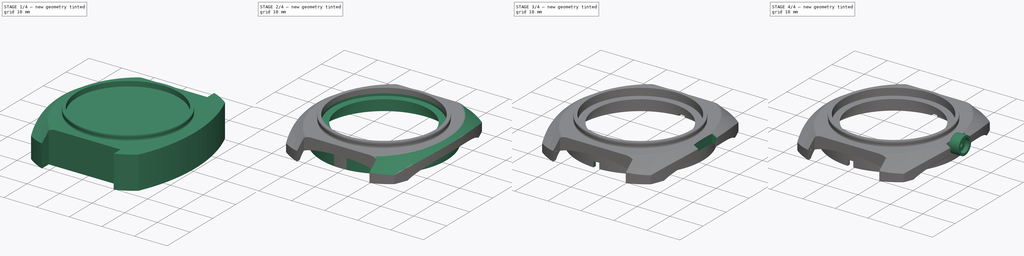
[diagram: build sequence overview — one tinted view per stage of 4, left to right]
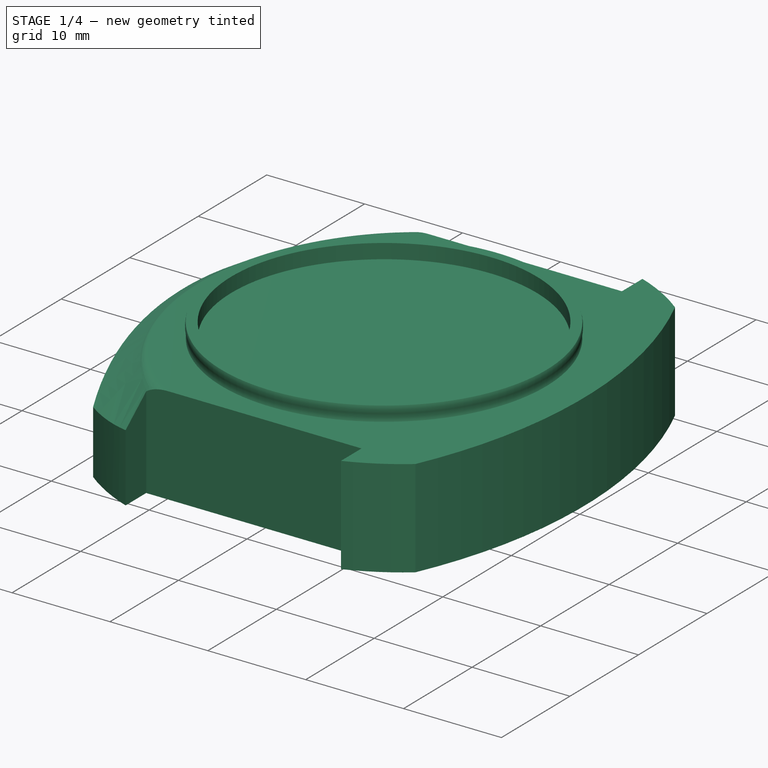
[diagram: stage 1 of 4 — iso view after this stage's code; geometry added in this stage tinted green]
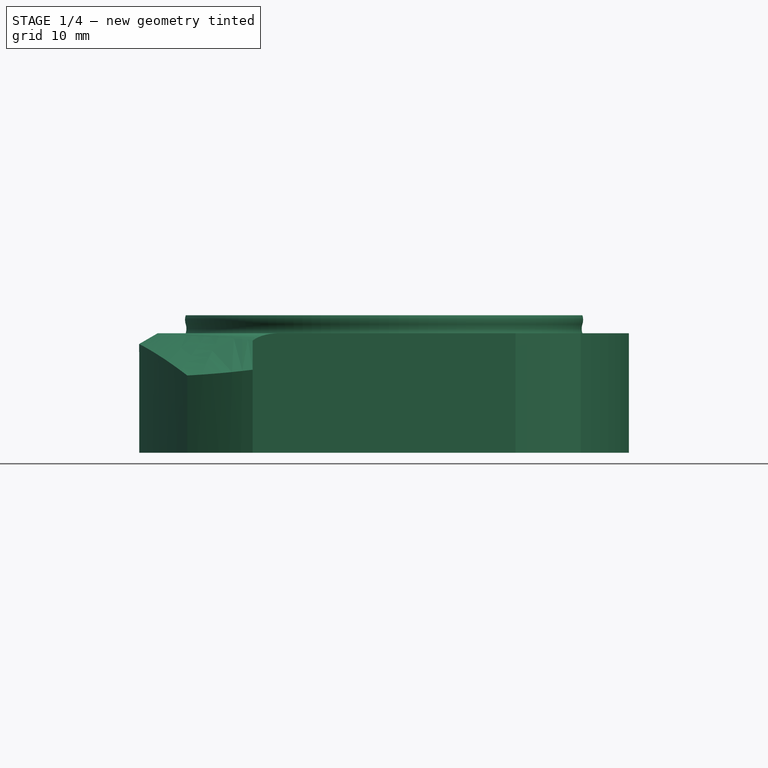
[diagram: stage 1 of 4 — front view after this stage's code; geometry added in this stage tinted green]
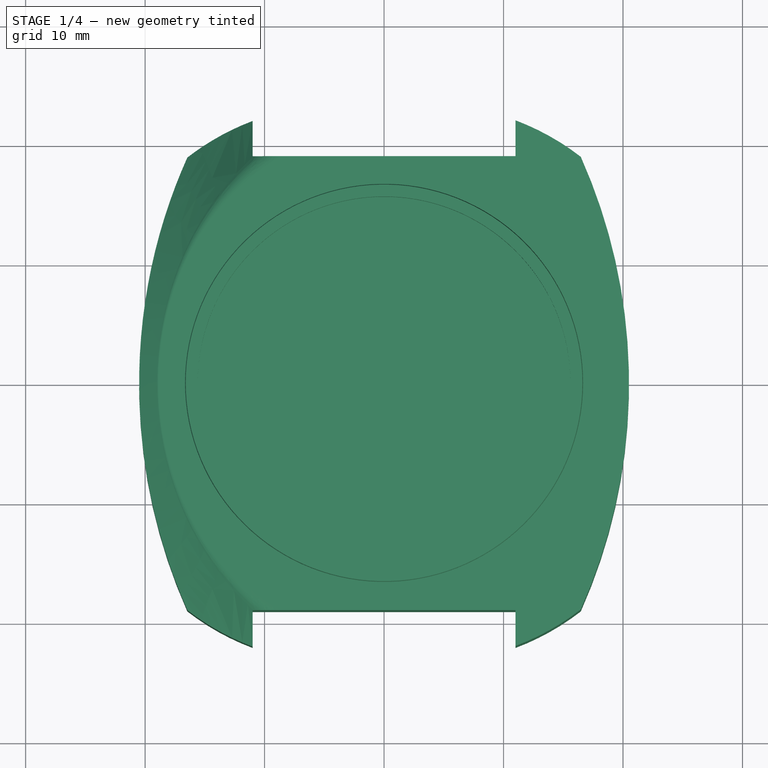
[diagram: stage 1 of 4 — top view after this stage's code; geometry added in this stage tinted green]
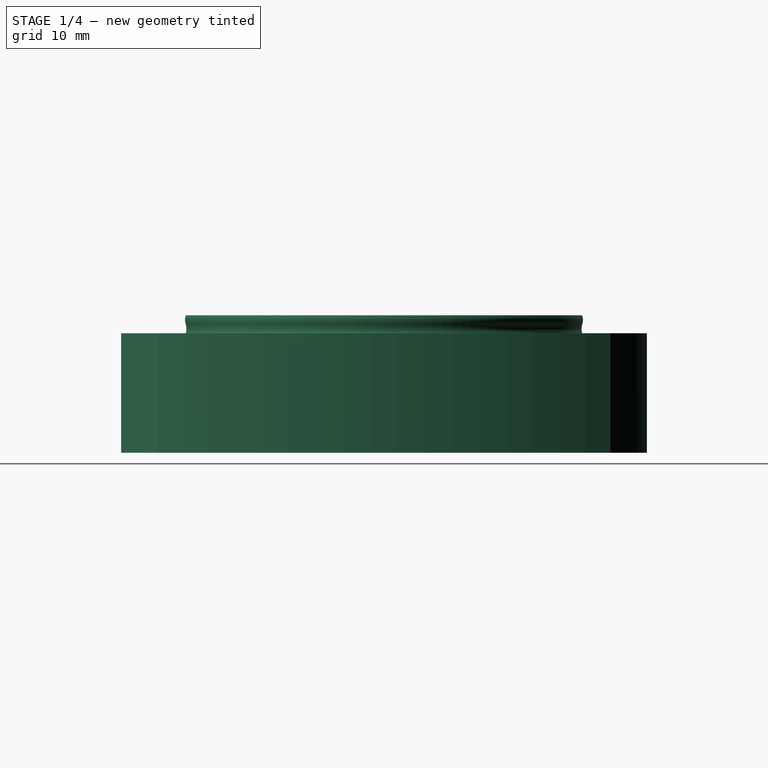
[diagram: stage 1 of 4 — right view after this stage's code; geometry added in this stage tinted green]
FCSTD DOCUMENT  (FreeCAD 0.19R20415 (Git))
Label: Vostok_Amphibia_Case_710
License: All rights reserved
LicenseURL: http://en.wikipedia.org/wiki/All_rights_reserved
objects: Sketcher::SketchObject×13, PartDesign::Pocket×4, PartDesign::Plane×3, PartDesign::Pad×2, PartDesign::Groove×2, Image::ImagePlane×1, PartDesign::Point×1, PartDesign::Revolution×1, PartDesign::SubtractivePipe×1, PartDesign::Mirrored×1, PartDesign::Body×1, Part::Fillet×1
note: 40 computed .brp shape members not serialized (recipe doc carries the construction recipe); baked Part::Feature solids carry a one-line shape summary decoded from their .brp

FEATURE [Image::ImagePlane] ImagePlane
  XSize = 57.9372
  YSize = 57.9372
FEATURE [PartDesign::Point] DatumPoint
  AttacherType = Attacher::AttachEnginePoint
FEATURE [Sketcher::SketchObject] Sketch
  MapMode = 5
  Support = -> [XY_Plane]
  sketch-geometry (15):
    g0: LineSegment StartX=-11 StartY=19 StartZ=0 EndX=11 EndY=19 EndZ=0
    g1: LineSegment StartX=11 StartY=19 StartZ=0 EndX=11 EndY=22 EndZ=0
    g2: ArcOfCircle CenterX=26 CenterY=0 CenterZ=0 NormalX=0 NormalY=0 NormalZ=1 AngleXU=0 Radius=46.5 StartAngle=2.72202 EndAngle=3.56117
    g3: ArcOfCircle CenterX=-26 CenterY=0 CenterZ=0 NormalX=0 NormalY=0 NormalZ=1 AngleXU=0 Radius=46.5 StartAngle=5.86361 EndAngle=6.70276
    g4: LineSegment StartX=-11 StartY=22 StartZ=0 EndX=-11 EndY=19 EndZ=0
    g5: ArcOfCircle CenterX=-3.59786 CenterY=2.34782 CenterZ=0 NormalX=0 NormalY=0 NormalZ=1 AngleXU=0 Radius=21 StartAngle=1.93102 EndAngle=2.2304
    g6: ArcOfCircle CenterX=3.59786 CenterY=2.34782 CenterZ=0 NormalX=0 NormalY=0 NormalZ=1 AngleXU=0 Radius=21 StartAngle=0.911194 EndAngle=1.21057
    g7: ArcOfCircle CenterX=-3.59786 CenterY=-2.34782 CenterZ=0 NormalX=0 NormalY=0 NormalZ=1 AngleXU=0 Radius=21 StartAngle=4.05279 EndAngle=4.35217
    g8: ArcOfCircle CenterX=3.59786 CenterY=-2.34782 CenterZ=0 NormalX=0 NormalY=0 NormalZ=1 AngleXU=0 Radius=21 StartAngle=5.07261 EndAngle=5.37199
    g9: LineSegment StartX=-11 StartY=-19 StartZ=0 EndX=11 EndY=-19 EndZ=0
    g10: LineSegment StartX=11 StartY=-19 StartZ=0 EndX=11 EndY=-22 EndZ=0
    g11: LineSegment StartX=-11 StartY=-19 StartZ=0 EndX=-11 EndY=-22 EndZ=0
    g12: GeomPoint X=-20.5 Y=0 Z=0
    g13: GeomPoint X=20.5 Y=0 Z=0
    g14: LineSegment [constr] StartX=16.4667 StartY=18.9428 StartZ=0 EndX=0 EndY=0 EndZ=0
  constraints (38):
    c: Coincident(g0,g1)
    c: Vertical(g1)
    c: PointOnObject(g2,g-1)
    c: Equal(g3,g2)
    c: Symmetric(g2,g3,g-2)
    c: Symmetric(g0,g0,g-2)
    c: Coincident(g4,g0)
    c: Symmetric(g4,g1,g-2)
    c: Coincident(g5,g2)
    c: Coincident(g5,g4)
    c: Coincident(g6,g1)
    c: Coincident(g6,g3)
    c: Symmetric(g6,g5,g-2)
    c: DistanceX(g0,g0) = 22
    c: Coincident(g7,g2)
    c: Coincident(g8,g3)
    c: Coincident(g9,g10)
    c: Coincident(g10,g8)
    c: Coincident(g9,g11)
    c: Coincident(g11,g7)
    c: Symmetric(g9,g0,g-1)
    c: Symmetric(g9,g0,g-1)
    c: Symmetric(g8,g1,g-1)
    c: Symmetric(g7,g4,g-1)
    c: Symmetric(g7,g8,g-2)
    c: Symmetric(g7,g5,g-1)
    c: PointOnObject(g12,g2)
    c: PointOnObject(g13,g3)
    c: Horizontal(g12,g13)
    c: PointOnObject(g12,g-1)
    c: DistanceX(g12,g13) = 41
    c: DistanceY(g8,g1) = 44
    c: Radius(g8) = 21
    c: Radius(g3) = 46.5
    c: DistanceY(g11,g11) = 3
    c: Coincident(g14,g3)
    c: Coincident(g14,g-1)
    c: Angle(g14,g-2) = 0.715585
FEATURE [PartDesign::Pad] Pad
  AllowMultiFace = false
  Length = 10
  Length2 = 100
  Profile = -> Sketch
  Type = 0
FEATURE [Sketcher::SketchObject] Sketch001
  MapMode = 5
  Placement = pos=(0,0,0) rot=(1,0,0;1.5708rad)
  Support = -> [XZ_Plane]
  sketch-geometry (5):
    g0: LineSegment StartX=15.6 StartY=10 StartZ=0 EndX=15.6 EndY=11.5 EndZ=0
    g1: LineSegment StartX=15.6 StartY=11.5 StartZ=0 EndX=16.6 EndY=11.5 EndZ=0
    g2: ArcOfCircle CenterX=17.7924 CenterY=10.375 CenterZ=0 NormalX=0 NormalY=0 NormalZ=1 AngleXU=0 Radius=1.25 StartAngle=2.8369 EndAngle=3.44629
    g3: LineSegment StartX=15.6 StartY=10 StartZ=0 EndX=16.6 EndY=10 EndZ=0
    g4: ArcOfCircle CenterX=15.4076 CenterY=11.125 CenterZ=0 NormalX=0 NormalY=0 NormalZ=1 AngleXU=0 Radius=1.25 StartAngle=5.97849 EndAngle=6.58788
  constraints (15):
    c: Vertical(g0)
    c: Coincident(g0,g1)
    c: Horizontal(g1)
    c: Coincident(g0,g3)
    c: Horizontal(g3)
    c: Coincident(g2,g3)
    c: Coincident(g4,g1)
    c: DistanceX(g1,g1) = 1
    c: Tangent(g4,g2) = 1.5708
    c: Vertical(g1,g2)
    c: DistanceY(g0,g0) = 1.5
    c: Symmetric(g1,g2,g2)
    c: Radius(g4) = 1.25
    c: DistanceY(g2) = 10
    c: DistanceX(g0) = 15.6
FEATURE [PartDesign::Revolution] Revolution
  AllowMultiFace = false
  Angle = 360
  Axis = (0,-2e-16,1)
  Base = (0,0,0)
  BaseFeature = -> Pad
  Profile = -> Sketch001
  ReferenceAxis = -> Sketch001 [V_Axis]
  Reversed = true
FEATURE [Sketcher::SketchObject] Sketch009
  ExternalGeometry = -> [Revolution]
  MapMode = 5
  Placement = pos=(0,0,10) rot=(0,0,1;0rad)
  sketch-geometry (7):
    g0: ArcOfEllipse CenterX=0 CenterY=0 CenterZ=0 NormalX=0 NormalY=0 NormalZ=1 MajorRadius=22.75 MinorRadius=20 AngleXU=1.5708 StartAngle=0 EndAngle=3.14159
    g1: LineSegment [constr] StartX=0 StartY=22.75 StartZ=0 EndX=0 EndY=-22.75 EndZ=0
    g2: LineSegment [constr] StartX=-20 StartY=2.2177e-12 StartZ=0 EndX=20 EndY=-2.2177e-12 EndZ=0
    g3: GeomPoint X=-4.0904e-12 Y=10.8426 Z=0
    g4: GeomPoint X=4.0907e-12 Y=-10.8426 Z=0
    g5: LineSegment StartX=-11 StartY=19 StartZ=0 EndX=0 EndY=19 EndZ=0
    g6: LineSegment StartX=0 StartY=-19 StartZ=0 EndX=-11 EndY=-19 EndZ=0
  constraints (14):
    c: InternalAlignment(g1-g4 -> g0) x4
    c: PointOnObject(g0,g-1)
    c: Perpendicular(g-1,g1)
    c: DistanceX(g2) = -20
    c: PointOnObject(g1,g-2)
    c: PointOnObject(g0,g-2)
    c: PointOnObject(g0,g-2)
    c: PointOnObject(g-3,g0)
    c: Coincident(g5,g-3)
    c: PointOnObject(g5,g-3)
    c: PointOnObject(g5,g-2)
    c: PointOnObject(g6,g1)
    c: Horizontal(g6)
    c: Symmetric(g6,g5,g-1)
FEATURE [PartDesign::Plane] DatumPlane
  Length = 60
  MapMode = 5
  Placement = pos=(-11,9.1316e-12,0) rot=(0.57735,0.57735,0.57735;2.0944rad)
  ResizeMode = 0
  Support = -> [Revolution]
  Width = 60
FEATURE [PartDesign::Plane] DatumPlane001
  Length = 60
  MapMode = 5
  Placement = pos=(0,0,0) rot=(1,0,0;1.5708rad)
  ResizeMode = 0
  Support = -> [XZ_Plane]
  Width = 60
FEATURE [Sketcher::SketchObject] Sketch013
  MapMode = 5
  Placement = pos=(0,0,0) rot=(1,0,0;1.5708rad)
  Support = -> [XZ_Plane]
  sketch-geometry (4):
    g0: LineSegment StartX=-29.7309 StartY=0 StartZ=0 EndX=29.7309 EndY=0 EndZ=0
    g1: LineSegment StartX=29.7309 StartY=0 StartZ=0 EndX=29.7309 EndY=4 EndZ=0
    g2: LineSegment StartX=29.7309 StartY=4 StartZ=0 EndX=-29.7309 EndY=4 EndZ=0
    g3: LineSegment StartX=-29.7309 StartY=4 StartZ=0 EndX=-29.7309 EndY=0 EndZ=0
  constraints (10):
    c: Coincident(g0,g1)
    c: Coincident(g1,g2)
    c: Coincident(g2,g3)
    c: Coincident(g3,g0)
    c: Horizontal(g0)
    c: Vertical(g1)
    c: Vertical(g3)
    c: PointOnObject(g0,g-1)
    c: DistanceY(g1,g1) = 4
    c: Symmetric(g1,g2,g-2)
FEATURE [Sketcher::SketchObject] Sketch014
  MapMode = 5
  Placement = pos=(0,0,0) rot=(0.57735,0.57735,0.57735;2.0944rad)
  Support = -> [YZ_Plane]
  sketch-geometry (16):
    g0: LineSegment StartX=0 StartY=4 StartZ=0 EndX=18 EndY=4 EndZ=0
    g1: LineSegment StartX=19 StartY=4 StartZ=0 EndX=19 EndY=7.3 EndZ=0
    g2: LineSegment StartX=19 StartY=4 StartZ=0 EndX=19 EndY=2 EndZ=0
    g3: LineSegment StartX=19 StartY=2 StartZ=0 EndX=24.368 EndY=2 EndZ=0
    g4: LineSegment StartX=0 StartY=4 StartZ=0 EndX=0 EndY=19.1 EndZ=0
    g5: LineSegment StartX=18 StartY=6 StartZ=0 EndX=15.5 EndY=6 EndZ=0
    g6: LineSegment StartX=15.5 StartY=6 StartZ=0 EndX=15.5 EndY=7.5 EndZ=0
    g7: LineSegment StartX=15.5 StartY=7.5 StartZ=0 EndX=14.25 EndY=7.5 EndZ=0
    g8: LineSegment StartX=14.25 StartY=7.5 StartZ=0 EndX=14.25 EndY=9.1 EndZ=0
    g9: LineSegment StartX=14.25 StartY=9.1 StartZ=0 EndX=13.6 EndY=9.1 EndZ=0
    g10: LineSegment StartX=15.6 StartY=19.1 StartZ=0 EndX=0 EndY=19.1 EndZ=0
    g11: LineSegment StartX=13.6 StartY=9.1 StartZ=0 EndX=13.6 EndY=9.3 EndZ=0
    g12: LineSegment StartX=13.6 StartY=9.3 StartZ=0 EndX=15.6 EndY=9.3 EndZ=0
    g13: LineSegment StartX=15.6 StartY=9.3 StartZ=0 EndX=15.6 EndY=19.1 EndZ=0
    g14: LineSegment StartX=18 StartY=6 StartZ=0 EndX=18 EndY=4 EndZ=0
    g15: ArcOfCircle CenterX=17.4381 CenterY=0.349676 CenterZ=0 NormalX=0 NormalY=0 NormalZ=1 AngleXU=0 Radius=7.12365 StartAngle=0.233792 EndAngle=1.34975
  constraints (47):
    c: Horizontal(g0)
    c: PointOnObject(g0,g-2)
    c: DistanceY(g0) = 4
    c: DistanceX(g0) = 18
    c: Vertical(g1)
    c: Horizontal(g1,g0)
    c: Coincident(g1,g2)
    c: Vertical(g2)
    c: Coincident(g2,g3)
    c: Horizontal(g3)
    c: DistanceY(g2,g1) = 2
    c: Vertical(g4)
    c: Coincident(g4,g0)
    c: Horizontal(g5)
    c: Coincident(g5,g6)
    c: Vertical(g6)
    c: Coincident(g6,g7)
    c: Horizontal(g7)
    c: Coincident(g7,g8)
    c: Vertical(g8)
    c: DistanceY(g0,g5) = 2
    c: DistanceY(g6,g6) = 1.5
    c: Coincident(g8,g9)
    c: Horizontal(g9)
    c: Horizontal(g10)
    c: DistanceY(g9,g10) = 10
    c: Coincident(g4,g10)
    c: DistanceX(g7) = 14.25
    c: Coincident(g9,g11)
    c: Vertical(g11)
    c: Coincident(g11,g12)
    c: Horizontal(g12)
    c: Coincident(g12,g13)
    c: Coincident(g10,g13)
    c: DistanceY(g9,g11) = 0.2
    c: DistanceX(g5,g5) = 2.5
    c: DistanceY(g0,g12) = 5.3
    c: DistanceX(g10) = 15.6
    c: Vertical(g13)
    c: DistanceX(g12,g12) = 2
    c: Coincident(g14,g5)
    c: Coincident(g14,g0)
    c: Vertical(g14)
    c: DistanceY(g1,g12) = 2
    c: DistanceX(g2) = 19
    c: Coincident(g1,g15)
    c: Coincident(g15,g3)
FEATURE [Sketcher::SketchObject] Sketch020
  MapMode = 5
  Placement = pos=(0,0,0) rot=(1,0,0;1.5708rad)
  Support = -> [XZ_Plane]
  sketch-geometry (4):
    g0: LineSegment StartX=-0.875 StartY=5.75 StartZ=0 EndX=0.875 EndY=5.75 EndZ=0
    g1: LineSegment StartX=0.875 StartY=5.75 StartZ=0 EndX=0.875 EndY=4 EndZ=0
    g2: LineSegment StartX=0.875 StartY=4 StartZ=0 EndX=-0.875 EndY=4 EndZ=0
    g3: LineSegment StartX=-0.875 StartY=4 StartZ=0 EndX=-0.875 EndY=5.75 EndZ=0
  constraints (11):
    c: Coincident(g0,g1)
    c: Coincident(g1,g2)
    c: Coincident(g2,g3)
    c: Coincident(g3,g0)
    c: Horizontal(g2)
    c: Vertical(g1)
    c: Vertical(g3)
    c: Equal(g0,g3)
    c: Symmetric(g0,g0,g-2)
    c: DistanceY(g3,g3) = 1.75
    c: DistanceY(g1) = 4
FEATURE [PartDesign::Plane] DatumPlane002
  AttachmentOffset = pos=(0,0,19) rot=(0,0,1;0rad)
  Length = 60
  MapMode = 2
  Placement = pos=(19,-4.2e-15,4.2e-15) rot=(0.57735,0.57735,0.57735;2.0944rad)
  ResizeMode = 0
  Support = -> [YZ_Plane]
  Width = 60
FEATURE [Sketcher::SketchObject] Sketch021  label="  "
  MapMode = 2
  Placement = pos=(19,-4.2e-15,4.2e-15) rot=(0.57735,0.57735,0.57735;2.0944rad)
  Support = -> [DatumPlane002]
  sketch-geometry (4):
    g0: LineSegment StartX=-4 StartY=20 StartZ=0 EndX=4 EndY=20 EndZ=0
    g1: LineSegment StartX=4 StartY=20 StartZ=0 EndX=4 EndY=0 EndZ=0
    g2: LineSegment StartX=4 StartY=0 StartZ=0 EndX=-4 EndY=0 EndZ=0
    g3: LineSegment StartX=-4 StartY=0 StartZ=0 EndX=-4 EndY=20 EndZ=0
  constraints (11):
    c: Coincident(g0,g1)
    c: Coincident(g1,g2)
    c: Coincident(g2,g3)
    c: Coincident(g3,g0)
    c: Horizontal(g2)
    c: Vertical(g1)
    c: Vertical(g3)
    c: Symmetric(g0,g0,g-2)
    c: DistanceX(g0,g0) = 8
    c: DistanceY(g1,g1) = 20
    c: PointOnObject(g-1,g2)
FEATURE [Sketcher::SketchObject] Sketch028
  MapMode = 5
  Placement = pos=(19,-4.2e-15,4.2e-15) rot=(0.57735,0.57735,0.57735;2.0944rad)
  Support = -> [DatumPlane002]
  sketch-geometry (1):
    g0: Circle CenterX=0 CenterY=8.5 CenterZ=0 NormalX=0 NormalY=0 NormalZ=1 AngleXU=0 Radius=2.75
  constraints (3):
    c: PointOnObject(g0,g-2)
    c: DistanceY(g0) = 8.5
    c: Radius(g0) = 2.75
FEATURE [Sketcher::SketchObject] Sketch029
  MapMode = 5
  Placement = pos=(0,0,0) rot=(1,0,0;1.5708rad)
  Support = -> [XZ_Plane]
  sketch-geometry (6):
    g0: LineSegment StartX=0 StartY=9.25 StartZ=0 EndX=0 EndY=8.5 EndZ=0
    g1: LineSegment StartX=0 StartY=8.5 StartZ=0 EndX=25 EndY=8.5 EndZ=0
    g2: LineSegment StartX=25 StartY=8.5 StartZ=0 EndX=25 EndY=10.5 EndZ=0
    g3: LineSegment StartX=25 StartY=10.5 StartZ=0 EndX=20.75 EndY=10.5 EndZ=0
    g4: LineSegment StartX=20.75 StartY=10.5 StartZ=0 EndX=20.75 EndY=9.25 EndZ=0
    g5: LineSegment StartX=20.75 StartY=9.25 StartZ=0 EndX=0 EndY=9.25 EndZ=0
  constraints (18):
    c: Coincident(g0,g1)
    c: Horizontal(g1)
    c: Coincident(g1,g2)
    c: Vertical(g2)
    c: Coincident(g2,g3)
    c: Horizontal(g3)
    c: Coincident(g3,g4)
    c: Vertical(g4)
    c: Coincident(g4,g5)
    c: Coincident(g5,g0)
    c: PointOnObject(g0,g-2)
    c: Vertical(g0)
    c: Horizontal(g5)
    c: DistanceY(g1) = 8.5
    c: DistanceY(g1,g4) = 0.75
    c: DistanceY(g2,g2) = 2
    c: DistanceX(g2) = 25
    c: DistanceX(g3) = 20.75
FEATURE [Sketcher::SketchObject] Sketch027
  MapMode = 5
  Placement = pos=(0,0,0) rot=(0.57735,0.57735,0.57735;2.0944rad)
  Support = -> [YZ_Plane]
  sketch-geometry (2):
    g0: Circle CenterX=20.75 CenterY=6.5 CenterZ=0 NormalX=0 NormalY=0 NormalZ=1 AngleXU=0 Radius=0.25
    g1: Circle CenterX=-20.75 CenterY=6.5 CenterZ=0 NormalX=0 NormalY=0 NormalZ=1 AngleXU=0 Radius=0.25
  constraints (5):
    c: Symmetric(g1,g0,g-2)
    c: Equal(g1,g0)
    c: Radius(g0) = 0.25
    c: DistanceX(g0) = 20.75
    c: DistanceY(g0) = 6.5
FEATURE [Sketcher::SketchObject] Sketch030
  MapMode = 5
  Placement = pos=(-11,9.1316e-12,0) rot=(0.57735,0.57735,0.57735;2.0944rad)
  Support = -> [DatumPlane]
  sketch-geometry (6):
    g0: LineSegment StartX=-17.393 StartY=10 StartZ=0 EndX=-24 EndY=10 EndZ=0
    g1: LineSegment StartX=-24 StartY=10 StartZ=0 EndX=-24 EndY=5.10304 EndZ=0
    g2: LineSegment StartX=-23.9107 StartY=5.29455 StartZ=0 EndX=-19 EndY=9.41511 EndZ=0
    g3: ArcOfCircle CenterX=-17.393 CenterY=7.5 CenterZ=0 NormalX=0 NormalY=0 NormalZ=1 AngleXU=0 Radius=2.5 StartAngle=1.5708 EndAngle=2.26893
    g4: ArcOfCircle CenterX=-23.75 CenterY=5.10304 CenterZ=0 NormalX=0 NormalY=0 NormalZ=1 AngleXU=0 Radius=0.25 StartAngle=2.26893 EndAngle=3.14159
    g5: GeomPoint X=-19 Y=10 Z=0
  constraints (14):
    c: Horizontal(g0)
    c: Coincident(g0,g1)
    c: Vertical(g1)
    c: Tangent(g2,g3) = 1.5708
    c: Tangent(g4,g2) = 1.5708
    c: Radius(g3) = 2.5
    c: Radius(g4) = 0.25
    c: DistanceY(g0) = 10
    c: Angle(g0,g2) = 0.698132
    c: Tangent(g4,g1) = -1.5708
    c: Tangent(g3,g0) = -1.5708
    c: Vertical(g5,g2)
    c: DistanceX(g0,g5) = 5
    c: DistanceX(g5) = -19
FEATURE [Sketcher::SketchObject] Sketch031
  MapMode = 5
  Placement = pos=(0,0,0) rot=(1,0,0;1.5708rad)
  Support = -> [XZ_Plane]
  sketch-geometry (6):
    g0: LineSegment StartX=-24 StartY=10 StartZ=0 EndX=-18.875 EndY=10 EndZ=0
    g1: LineSegment StartX=-24 StartY=10 StartZ=0 EndX=-24 EndY=6.93542 EndZ=0
    g2: LineSegment StartX=-23.875 StartY=7.15192 StartZ=0 EndX=-19 EndY=9.96651 EndZ=0
    g3: ArcOfCircle CenterX=-18.875 CenterY=9.75 CenterZ=0 NormalX=0 NormalY=0 NormalZ=1 AngleXU=0 Radius=0.25 StartAngle=1.5708 EndAngle=2.0944
    g4: ArcOfCircle CenterX=-23.75 CenterY=6.93542 CenterZ=0 NormalX=0 NormalY=0 NormalZ=1 AngleXU=0 Radius=0.25 StartAngle=2.0944 EndAngle=3.14159
    g5: GeomPoint X=-19 Y=10 Z=0
  constraints (15):
    c: Horizontal(g0)
    c: Coincident(g0,g1)
    c: Tangent(g2,g3) = 1.5708
    c: Tangent(g2,g4) = 1.5708
    c: Tangent(g4,g1) = -1.5708
    c: Vertical(g1)
    c: Radius(g4) = 0.25
    c: Tangent(g3,g0) = 1.5708
    c: PointOnObject(g5,g0)
    c: Vertical(g2,g5)
    c: DistanceY(g0) = 10
    c: DistanceX(g0,g5) = 5
    c: DistanceX(g5) = -19
    c: Radius(g3) = 0.25
    c: Angle(g0,g2) = 0.523599
FEATURE [Sketcher::SketchObject] Sketch032
  MapMode = 5
  Placement = pos=(-11,9.1316e-12,0) rot=(0.57735,0.57735,0.57735;2.0944rad)
  Support = -> [DatumPlane]
  sketch-geometry (6):
    g0: LineSegment StartX=17.393 StartY=10 StartZ=0 EndX=24 EndY=10 EndZ=0
    g1: LineSegment StartX=24 StartY=10 StartZ=0 EndX=24 EndY=5.10304 EndZ=0
    g2: LineSegment StartX=19 StartY=9.41511 StartZ=0 EndX=23.9107 EndY=5.29455 EndZ=0
    g3: ArcOfCircle CenterX=23.75 CenterY=5.10304 CenterZ=0 NormalX=0 NormalY=0 NormalZ=1 AngleXU=0 Radius=0.25 StartAngle=0 EndAngle=0.872665
    g4: ArcOfCircle CenterX=17.393 CenterY=7.5 CenterZ=0 NormalX=0 NormalY=0 NormalZ=1 AngleXU=0 Radius=2.5 StartAngle=0.872665 EndAngle=1.5708
    g5: GeomPoint X=19 Y=10 Z=0
  constraints (15):
    c: Horizontal(g0)
    c: Coincident(g0,g1)
    c: Vertical(g1)
    c: Tangent(g2,g3) = 1.5708
    c: Tangent(g2,g4) = 1.5708
    c: Tangent(g3,g1) = 1.5708
    c: Tangent(g4,g0) = 1.5708
    c: PointOnObject(g5,g0)
    c: Vertical(g2,g5)
    c: DistanceX(g5,g0) = 5
    c: Radius(g4) = 2.5
    c: Radius(g3) = 0.25
    c: Angle(g2,g0) = 0.698132
    c: DistanceX(g5) = 19
    c: DistanceY(g0) = 10
FEATURE [PartDesign::SubtractivePipe] SubtractivePipe
  AuxilleryCurvelinear = true
  AuxillerySpineTangent = false
  BaseFeature = -> Revolution
  Binormal = (0,0,0)
  Mode = 0
  Profile = -> Sketch030
  Sections = -> [Sketch031,Sketch032]
  Spine = -> Sketch009 [Edge1]
  SpineTangent = false
  Transformation = 1
  Transition = 2
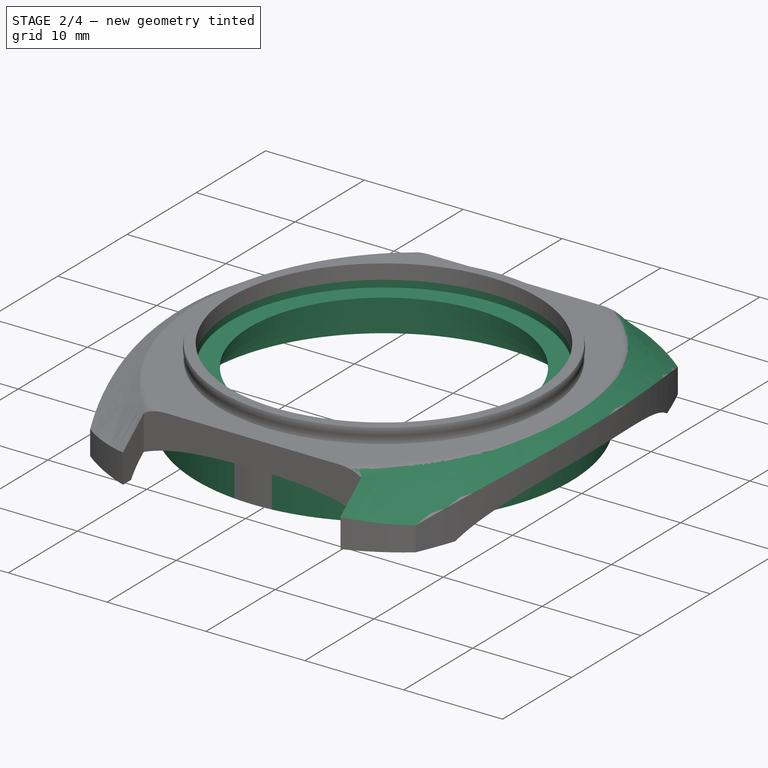
[diagram: stage 2 of 4 — iso view after this stage's code; geometry added in this stage tinted green]
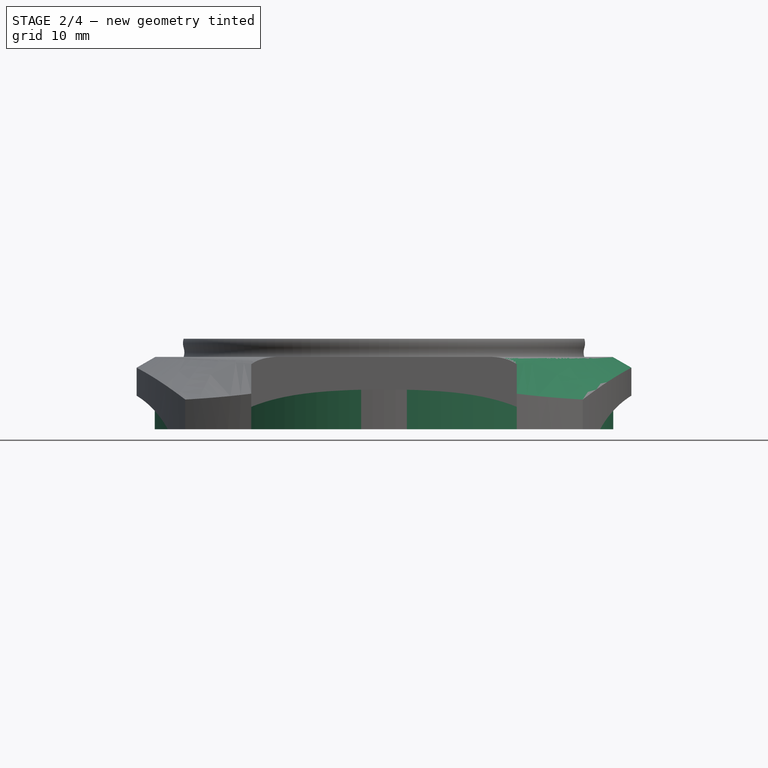
[diagram: stage 2 of 4 — front view after this stage's code; geometry added in this stage tinted green]
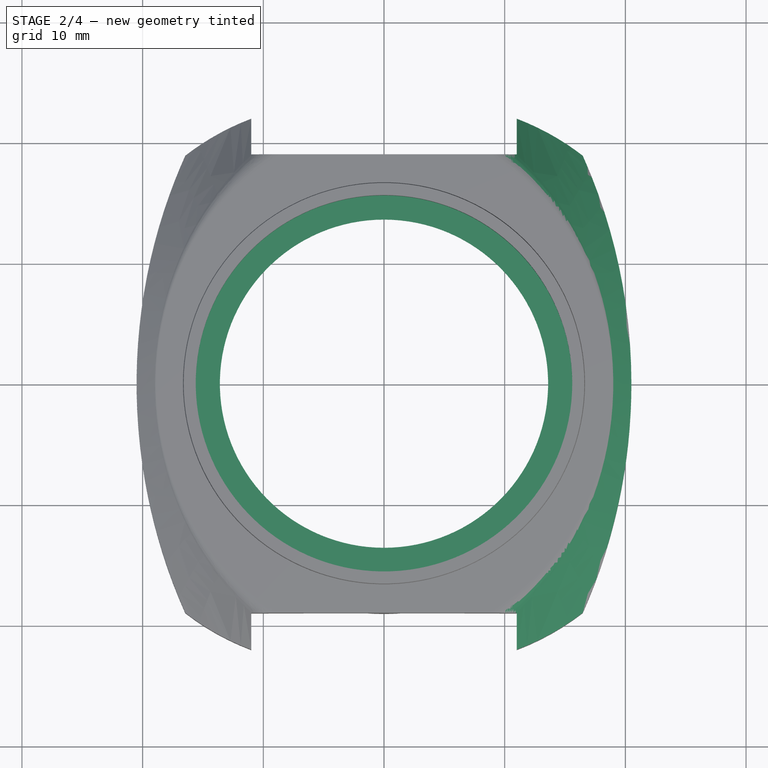
[diagram: stage 2 of 4 — top view after this stage's code; geometry added in this stage tinted green]
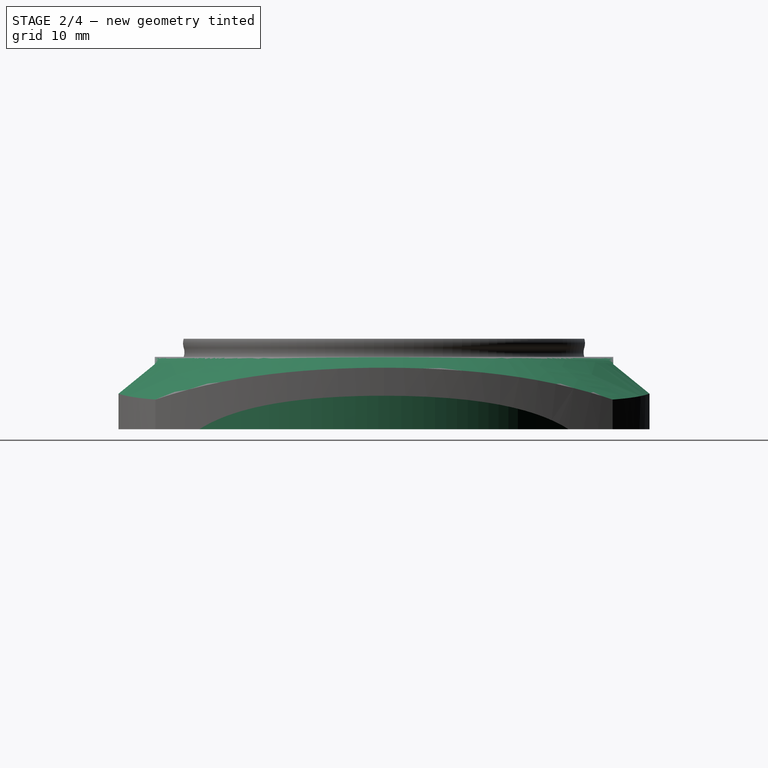
[diagram: stage 2 of 4 — right view after this stage's code; geometry added in this stage tinted green]
FEATURE [PartDesign::Mirrored] Mirrored
  BaseFeature = -> SubtractivePipe
  MirrorPlane = -> YZ_Plane
  Originals = -> [SubtractivePipe]
FEATURE [PartDesign::Pocket] Pocket
  BaseFeature = -> Mirrored
  Length = 5
  Length2 = 100
  Midplane = true
  Profile = -> Sketch013
  Type = 1
FEATURE [PartDesign::Groove] Groove
  Angle = 360
  Axis = (-2e-16,3e-16,1)
  Base = (0,0,0)
  BaseFeature = -> Pocket
  Profile = -> Sketch014
  ReferenceAxis = -> Sketch014 [V_Axis]
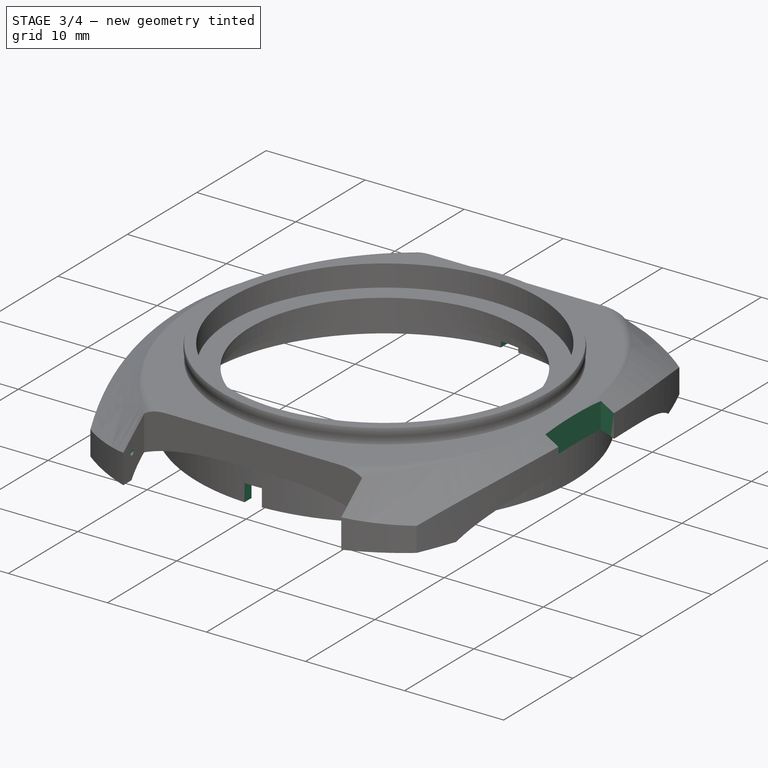
[diagram: stage 3 of 4 — iso view after this stage's code; geometry added in this stage tinted green]
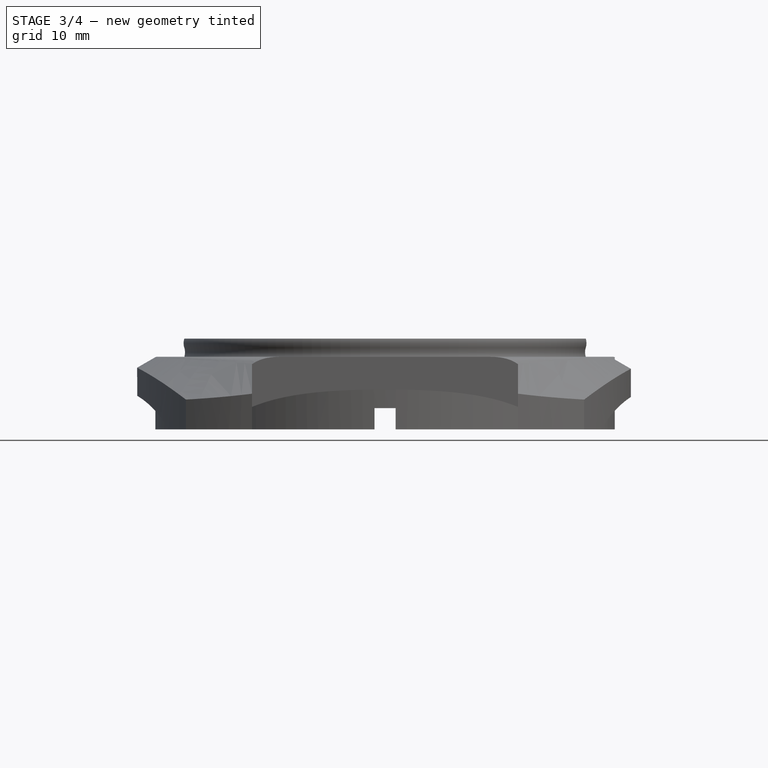
[diagram: stage 3 of 4 — front view after this stage's code; geometry added in this stage tinted green]
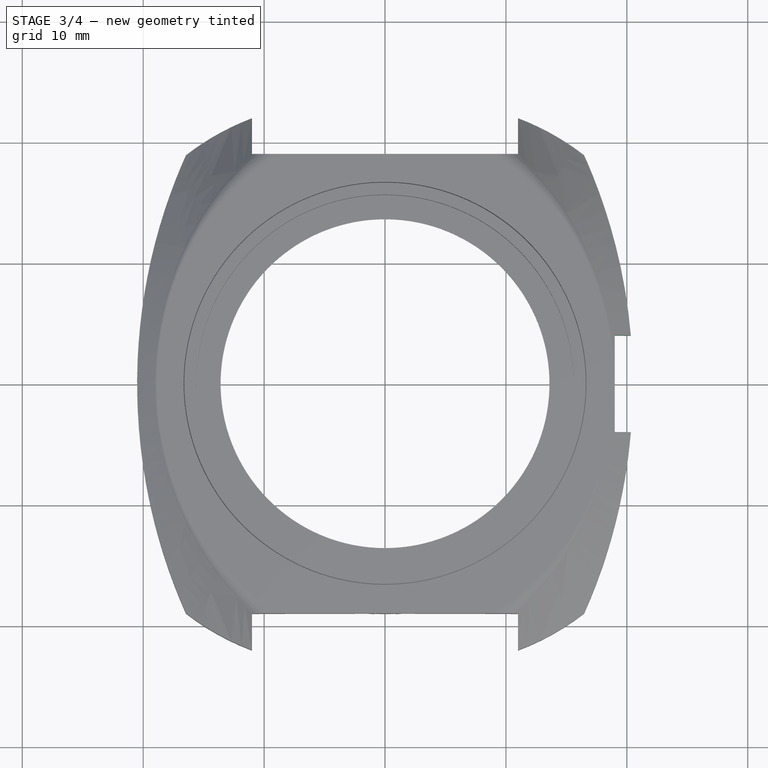
[diagram: stage 3 of 4 — top view after this stage's code; geometry added in this stage tinted green]
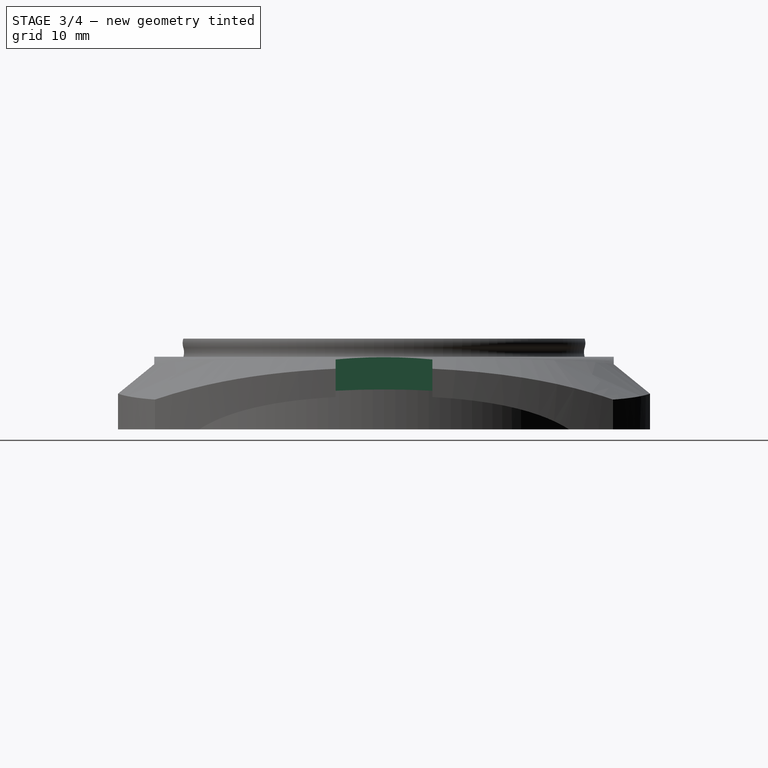
[diagram: stage 3 of 4 — right view after this stage's code; geometry added in this stage tinted green]
FEATURE [PartDesign::Pocket] Pocket001
  BaseFeature = -> Groove
  Length = 5
  Length2 = 100
  Midplane = true
  Profile = -> Sketch020
  Type = 1
FEATURE [PartDesign::Pocket] Pocket002
  BaseFeature = -> Pocket001
  Length = 5
  Length2 = 100
  Profile = -> Sketch021
  Reversed = true
  Type = 0
FEATURE [PartDesign::Pocket] Pocket003
  BaseFeature = -> Pocket002
  Length = 22.5
  Length2 = 100
  Midplane = true
  Profile = -> Sketch027
  Type = 0
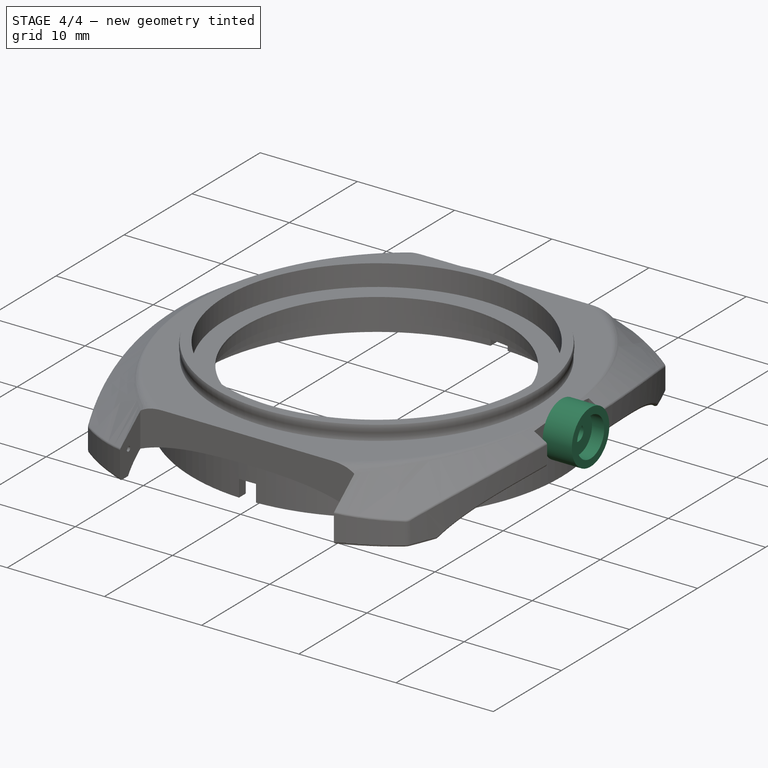
[diagram: stage 4 of 4 — iso view after this stage's code; geometry added in this stage tinted green]
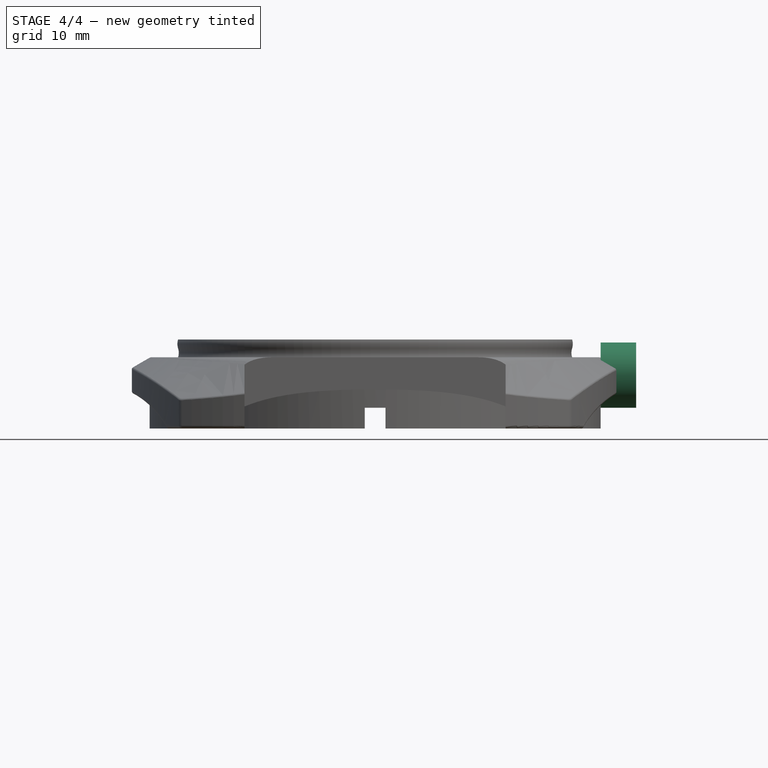
[diagram: stage 4 of 4 — front view after this stage's code; geometry added in this stage tinted green]
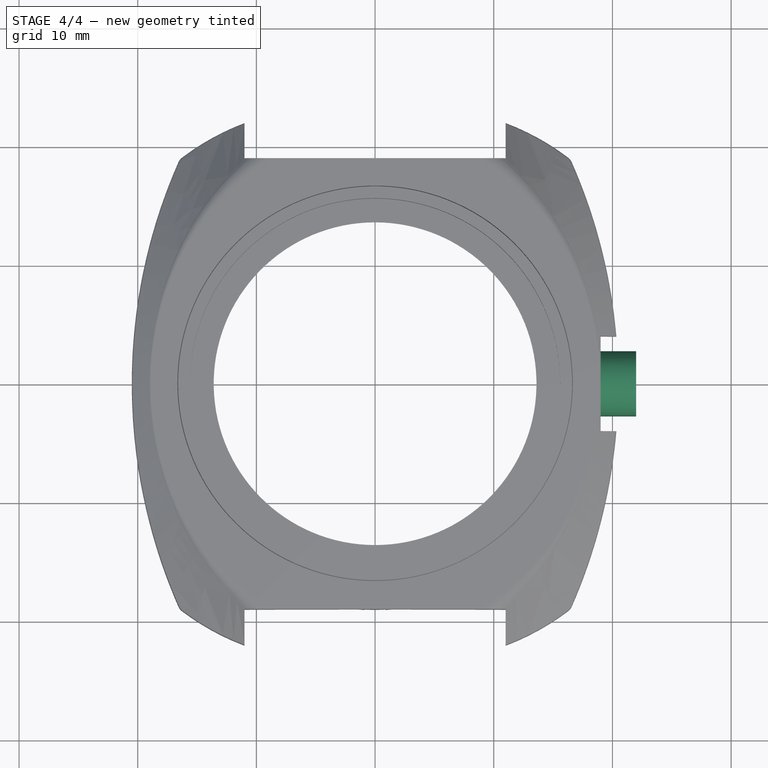
[diagram: stage 4 of 4 — top view after this stage's code; geometry added in this stage tinted green]
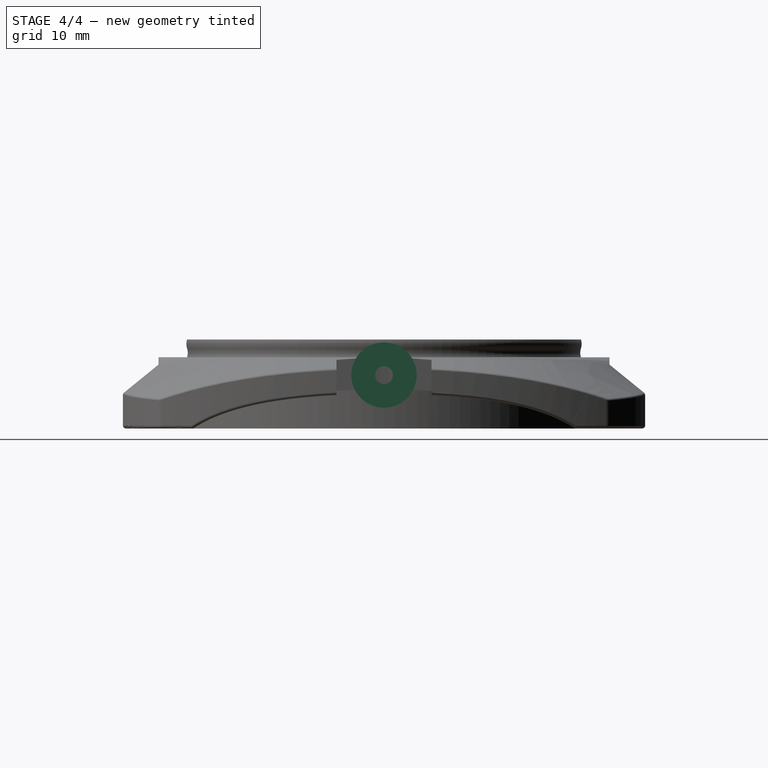
[diagram: stage 4 of 4 — right view after this stage's code; geometry added in this stage tinted green]
FEATURE [PartDesign::Pad] Pad001
  BaseFeature = -> Pocket003
  Length = 3
  Length2 = 100
  Profile = -> Sketch028
  Type = 0
FEATURE [PartDesign::Groove] Groove001
  Angle = 360
  Axis = (1,0,0)
  Base = (0,-1.9e-15,8.5)
  BaseFeature = -> Pad001
  Profile = -> Sketch029
  ReferenceAxis = -> Sketch029 [Edge2]
FEATURE [PartDesign::Body] Body  label="710_case"
  Group = -> [Sketch,Pad,Sketch001,Revolution,DatumPlane,DatumPlane001,DatumPoint,Sketch009,Sketch013,Sketch014,Sketch020,Sketch021,Sketch027,DatumPlane002,Sketch028,Sketch029,Sketch030,Sketch031,Sketch032,SubtractivePipe,Mirrored,Pocket,Groove,Pocket001,Pocket002,Pocket003,Pad001,Groove001]
  Origin = -> Origin
  Tip = -> Groove001
FEATURE [Part::Fillet] Fillet
  Base = -> Groove001
  Edges = 22 edges: [Edge8 r=0.25,Edge9 r=0.25,Edge10 r=1,Edge11 r=0.25,Edge16 r=0.25,Edge19 r=0.25,Edge20 r=0.25,Edge32 r=1,Edge33 r=0.25,Edge51 r=0.25,Edge55 r=0.25,Edge64 r=0.25,Edge65 r=0.25,Edge97 r=0.25,Edge107 r=0.25,Edge108 r=0.25,Edge111 r=0.25,Edge112 r=0.25,Edge113 r=1,Edge135 r=1,Edge136 r=0.25,Edge137 r=0.25]
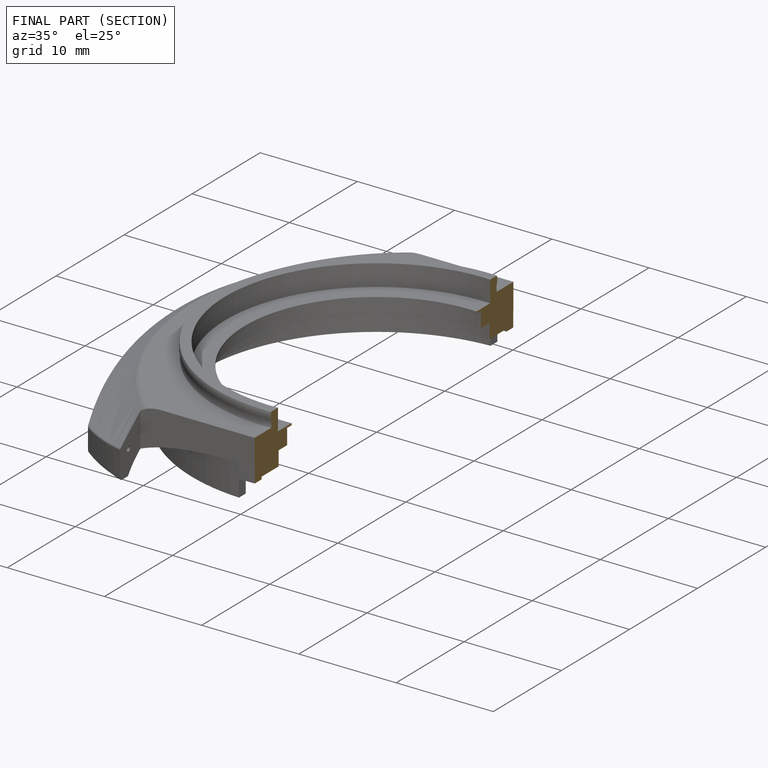
[diagram: finished part — half-section view (interior)]
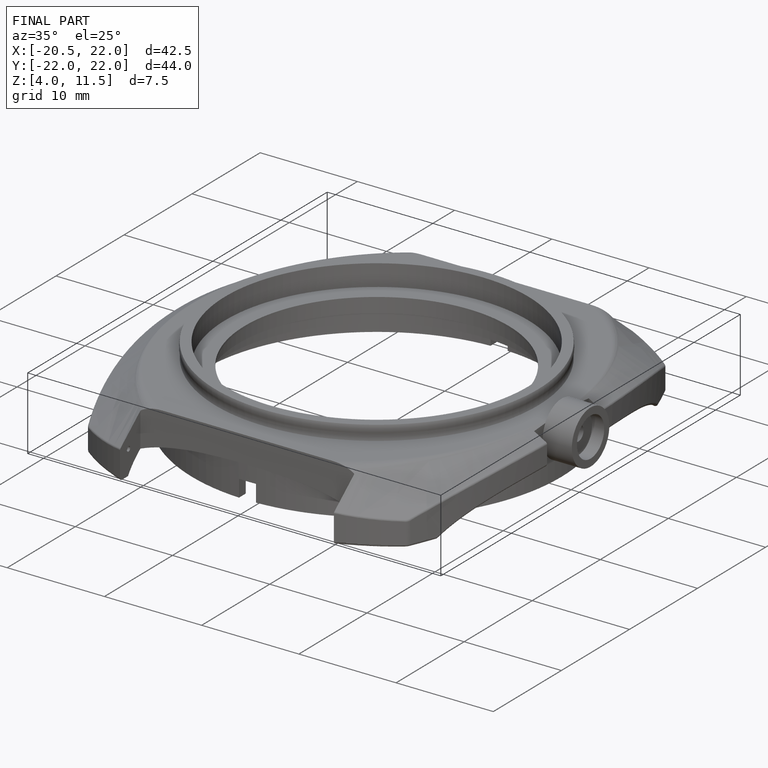
[diagram: finished part — iso view with bounding-box wireframe]
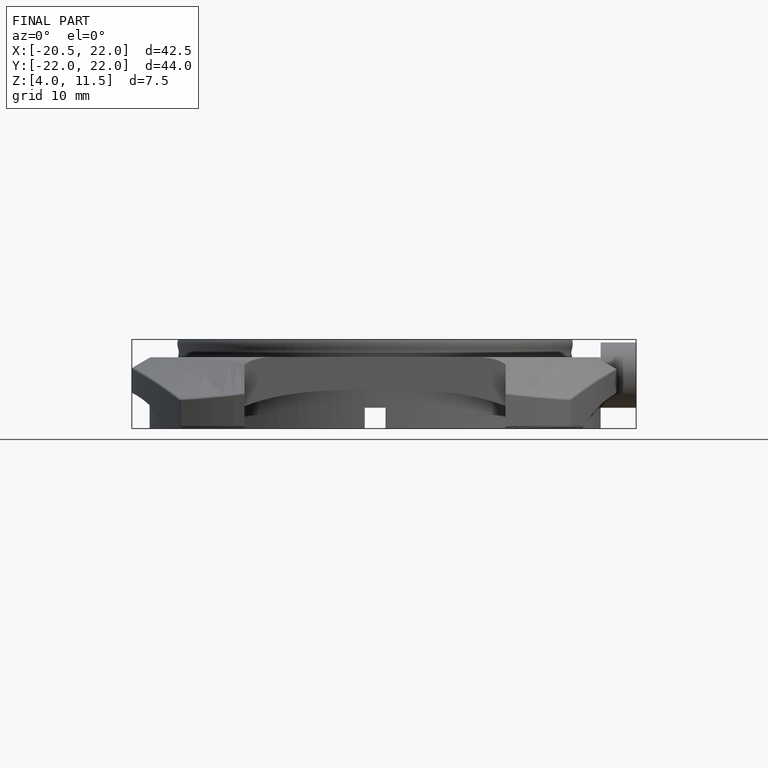
[diagram: finished part — front view with bounding-box wireframe]
